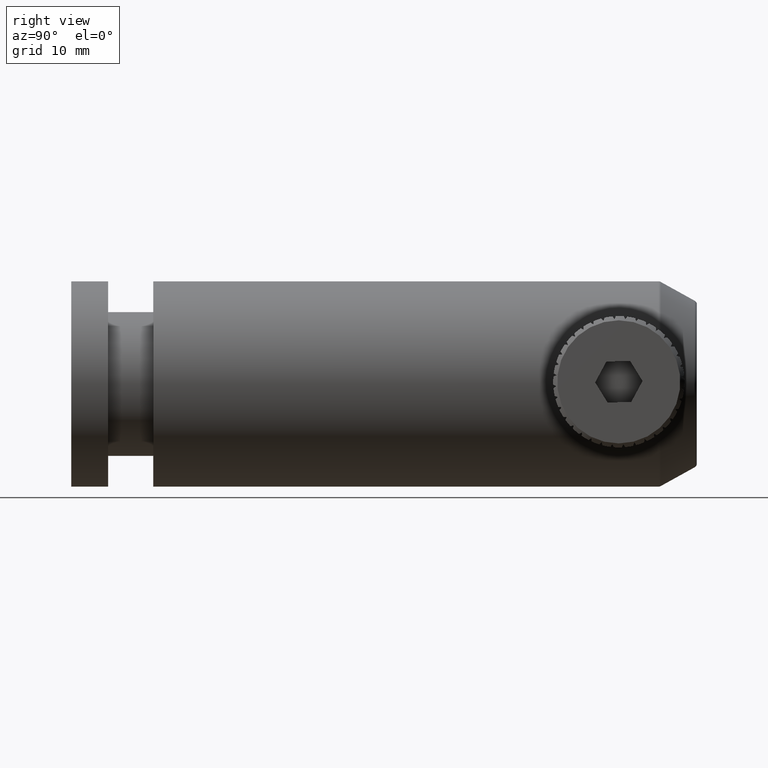
[diagram: clean part render]
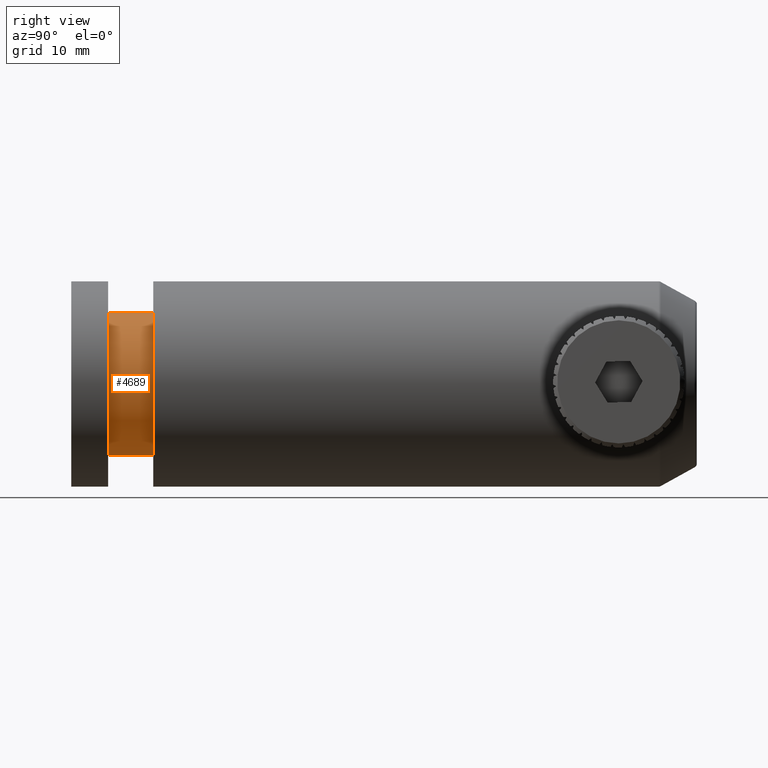
[diagram: same view with one face highlighted and labeled with its STEP entity id]
A machine part, right view. The second image highlights one B-rep face of the part: STEP entity #4689.
In plain terms, the highlighted cylindrical surface (partial cylindrical patch) has radius 8.75 mm, axis along (-0, -1, -0).
Its self-contained STEP definition (entity closure, byte-faithful):
#249 = EDGE_CURVE ( 'NONE', #4099, #1724, #2969, .T. ) ;
#344 = CARTESIAN_POINT ( 'NONE',  ( -3.194185020997174700, -6.313612059609844200, 0.0000000000000000000 ) ) ;
#415 = EDGE_LOOP ( 'NONE', ( #4348, #3958, #3883, #2837 ) ) ;
#815 = CARTESIAN_POINT ( 'NONE',  ( -3.194185020997174700, -24.86122148995913500, -8.750000000000000000 ) ) ;
#836 = CYLINDRICAL_SURFACE ( 'NONE', #2045, 8.750000000000000000 ) ;
#1065 = AXIS2_PLACEMENT_3D ( 'NONE', #3477, #1856, #3891 ) ;
#1207 = DIRECTION ( 'NONE',  ( -0.0000000000000000000, -1.000000000000000000, -0.0000000000000000000 ) ) ;
#1303 = EDGE_CURVE ( 'NONE', #4099, #3352, #2051, .T. ) ;
#1494 = CARTESIAN_POINT ( 'NONE',  ( -3.194185020997173800, -24.86122148995913500, 8.750000000000000000 ) ) ;
#1509 = CARTESIAN_POINT ( 'NONE',  ( -3.194185020997174700, -11.81361205960984500, -8.750000000000000000 ) ) ;
#1516 = DIRECTION ( 'NONE',  ( 0.0000000000000000000, 0.0000000000000000000, -1.000000000000000000 ) ) ;
#1615 = VERTEX_POINT ( 'NONE', #4999 ) ;
#1724 = VERTEX_POINT ( 'NONE', #3160 ) ;
#1856 = DIRECTION ( 'NONE',  ( -0.0000000000000000000, -1.000000000000000000, -0.0000000000000000000 ) ) ;
#1973 = EDGE_CURVE ( 'NONE', #1724, #1615, #3959, .T. ) ;
#2045 = AXIS2_PLACEMENT_3D ( 'NONE', #3036, #3067, #4301 ) ;
#2051 = LINE ( 'NONE', #815, #3577 ) ;
#2625 = VECTOR ( 'NONE', #3484, 1000.000000000000000 ) ;
#2832 = EDGE_CURVE ( 'NONE', #3352, #1615, #4930, .T. ) ;
#2837 = ORIENTED_EDGE ( 'NONE', *, *, #1303, .F. ) ;
#2969 = CIRCLE ( 'NONE', #4933, 8.750000000000000000 ) ;
#3036 = CARTESIAN_POINT ( 'NONE',  ( -3.194185020997174700, -24.86122148995913500, 0.0000000000000000000 ) ) ;
#3067 = DIRECTION ( 'NONE',  ( -0.0000000000000000000, -1.000000000000000000, -0.0000000000000000000 ) ) ;
#3160 = CARTESIAN_POINT ( 'NONE',  ( -3.194185020997173800, -6.313612059609844200, 8.750000000000000000 ) ) ;
#3298 = DIRECTION ( 'NONE',  ( -0.0000000000000000000, -1.000000000000000000, -0.0000000000000000000 ) ) ;
#3352 = VERTEX_POINT ( 'NONE', #1509 ) ;
#3397 = CARTESIAN_POINT ( 'NONE',  ( -3.194185020997174700, -6.313612059609844200, -8.750000000000000000 ) ) ;
#3477 = CARTESIAN_POINT ( 'NONE',  ( -3.194185020997174700, -11.81361205960984500, 0.0000000000000000000 ) ) ;
#3484 = DIRECTION ( 'NONE',  ( -0.0000000000000000000, -1.000000000000000000, -0.0000000000000000000 ) ) ;
#3577 = VECTOR ( 'NONE', #1207, 1000.000000000000000 ) ;
#3883 = ORIENTED_EDGE ( 'NONE', *, *, #2832, .F. ) ;
#3891 = DIRECTION ( 'NONE',  ( 0.0000000000000000000, 0.0000000000000000000, -1.000000000000000000 ) ) ;
#3958 = ORIENTED_EDGE ( 'NONE', *, *, #1973, .T. ) ;
#3959 = LINE ( 'NONE', #1494, #2625 ) ;
#4010 = FACE_OUTER_BOUND ( 'NONE', #415, .T. ) ;
#4099 = VERTEX_POINT ( 'NONE', #3397 ) ;
#4301 = DIRECTION ( 'NONE',  ( 0.0000000000000000000, 0.0000000000000000000, -1.000000000000000000 ) ) ;
#4348 = ORIENTED_EDGE ( 'NONE', *, *, #249, .T. ) ;
#4689 = ADVANCED_FACE ( 'NONE', ( #4010 ), #836, .T. ) ;
#4930 = CIRCLE ( 'NONE', #1065, 8.750000000000000000 ) ;
#4933 = AXIS2_PLACEMENT_3D ( 'NONE', #344, #3298, #1516 ) ;
#4999 = CARTESIAN_POINT ( 'NONE',  ( -3.194185020997173800, -11.81361205960984500, 8.750000000000000000 ) ) ;